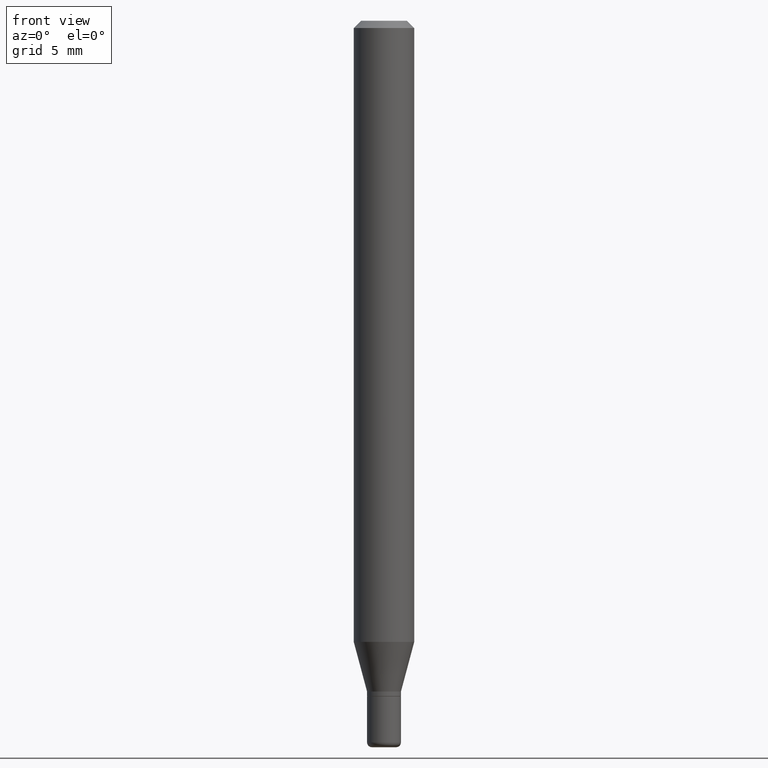
[diagram: clean part render]
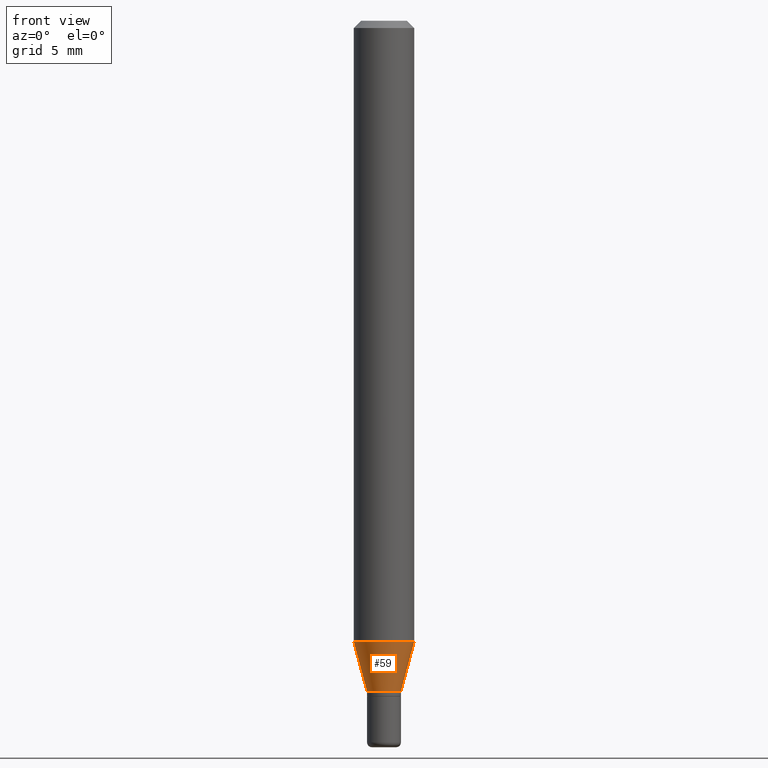
[diagram: same view with one face highlighted and labeled with its STEP entity id]
A machine part, front view. The second image highlights one B-rep face of the part: STEP entity #59.
In plain terms, the highlighted conical surface has half-angle 15 deg.
Its self-contained STEP definition (entity closure, byte-faithful):
#34 = CARTESIAN_POINT ( 'NONE',  ( 0.06250000000000000000, -4.913801213521515384E-15, -1.282368602791855938 ) ) ;
#59 = ADVANCED_FACE ( 'NONE', ( #148 ), #78, .T. ) ;
#78 = CONICAL_SURFACE ( 'NONE', #494, 0.03499999999999998251, 0.2617993877991494633 ) ;
#100 = VERTEX_POINT ( 'NONE', #157 ) ;
#108 = DIRECTION ( 'NONE',  ( 1.000000000000000000, -6.982962677686280910E-15, 0.000000000000000000 ) ) ;
#110 = CARTESIAN_POINT ( 'NONE',  ( -0.03499999999999998251, -4.310144266548890801E-15, -1.385000000000000009 ) ) ;
#111 = DIRECTION ( 'NONE',  ( -2.445468806185136597E-29, 3.491481338843145583E-15, 1.000000000000000000 ) ) ;
#112 = DIRECTION ( 'NONE',  ( -0.2588190451025207395, 5.211531920934546309E-15, 0.9659258262890682012 ) ) ;
#119 = ORIENTED_EDGE ( 'NONE', *, *, #415, .T. ) ;
#139 = VERTEX_POINT ( 'NONE', #195 ) ;
#148 = FACE_OUTER_BOUND ( 'NONE', #209, .T. ) ;
#149 = EDGE_CURVE ( 'NONE', #139, #217, #511, .T. ) ;
#157 = CARTESIAN_POINT ( 'NONE',  ( 0.03499999999999998251, -5.080105348016776545E-15, -1.385000000000000009 ) ) ;
#168 = AXIS2_PLACEMENT_3D ( 'NONE', #220, #111, #108 ) ;
#187 = CARTESIAN_POINT ( 'NONE',  ( 3.135992416158701602E-29, -4.477366046166122926E-15, -1.282368602791855938 ) ) ;
#191 = LINE ( 'NONE', #312, #350 ) ;
#195 = CARTESIAN_POINT ( 'NONE',  ( -0.06250000000000000000, -4.033276836316059521E-15, -1.282368602791855938 ) ) ;
#199 = VERTEX_POINT ( 'NONE', #110 ) ;
#209 = EDGE_LOOP ( 'NONE', ( #449, #119, #482, #331 ) ) ;
#217 = VERTEX_POINT ( 'NONE', #34 ) ;
#220 = CARTESIAN_POINT ( 'NONE',  ( 3.386974296566414366E-29, -4.835701654297756579E-15, -1.385000000000000009 ) ) ;
#226 = CARTESIAN_POINT ( 'NONE',  ( 0.03499999999999998251, -5.080105348016776545E-15, -1.385000000000000009 ) ) ;
#228 = EDGE_CURVE ( 'NONE', #199, #139, #191, .T. ) ;
#230 = CARTESIAN_POINT ( 'NONE',  ( 3.386974296566414366E-29, -4.835701654297756579E-15, -1.385000000000000009 ) ) ;
#312 = CARTESIAN_POINT ( 'NONE',  ( -0.03499999999999998251, -4.587011696781721293E-15, -1.385000000000000009 ) ) ;
#331 = ORIENTED_EDGE ( 'NONE', *, *, #149, .F. ) ;
#335 = CIRCLE ( 'NONE', #168, 0.03499999999999998251 ) ;
#350 = VECTOR ( 'NONE', #112, 39.37007874015748854 ) ;
#357 = DIRECTION ( 'NONE',  ( 1.000000000000000000, -6.982962677686280910E-15, 0.000000000000000000 ) ) ;
#376 = AXIS2_PLACEMENT_3D ( 'NONE', #187, #431, #467 ) ;
#415 = EDGE_CURVE ( 'NONE', #199, #100, #335, .T. ) ;
#423 = DIRECTION ( 'NONE',  ( 0.2588190451025207395, 1.565188264969626109E-15, 0.9659258262890682012 ) ) ;
#427 = EDGE_CURVE ( 'NONE', #100, #217, #468, .T. ) ;
#431 = DIRECTION ( 'NONE',  ( -2.445468806185136597E-29, 3.491481338843145583E-15, 1.000000000000000000 ) ) ;
#449 = ORIENTED_EDGE ( 'NONE', *, *, #228, .F. ) ;
#458 = VECTOR ( 'NONE', #423, 39.37007874015748854 ) ;
#467 = DIRECTION ( 'NONE',  ( 1.000000000000000000, -6.982962677686262766E-15, 0.000000000000000000 ) ) ;
#468 = LINE ( 'NONE', #226, #458 ) ;
#482 = ORIENTED_EDGE ( 'NONE', *, *, #427, .T. ) ;
#494 = AXIS2_PLACEMENT_3D ( 'NONE', #230, #510, #357 ) ;
#510 = DIRECTION ( 'NONE',  ( -2.445468806185136597E-29, 3.491481338843145583E-15, 1.000000000000000000 ) ) ;
#511 = CIRCLE ( 'NONE', #376, 0.06250000000000000000 ) ;